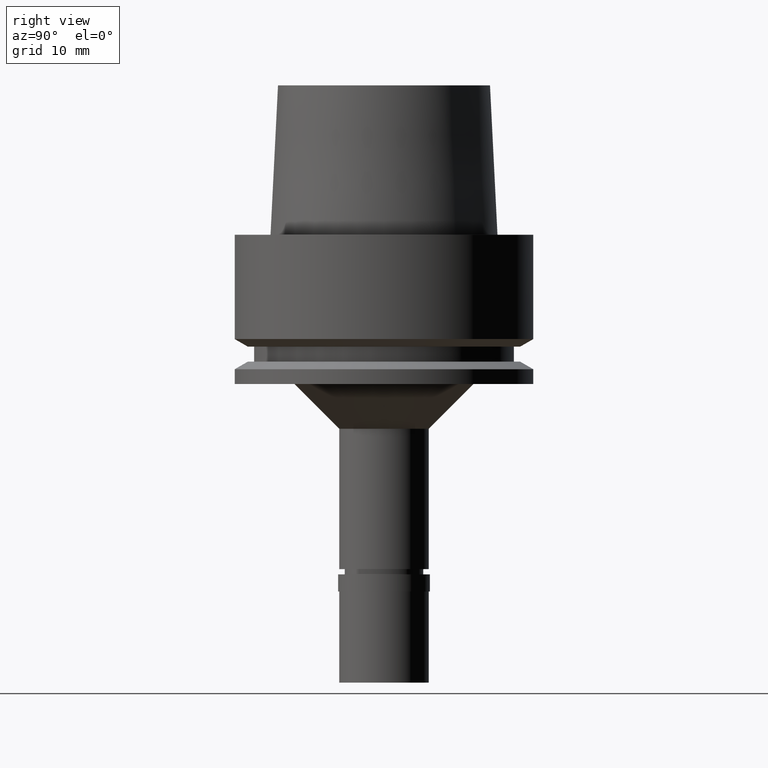
[diagram: clean part render]
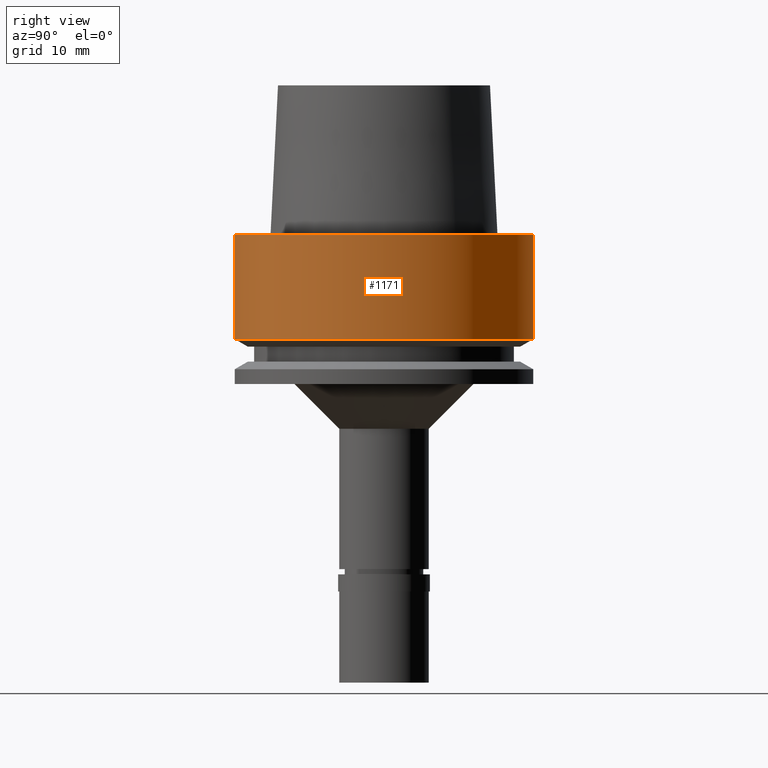
[diagram: same view with one face highlighted and labeled with its STEP entity id]
A machine part, right view. The second image highlights one B-rep face of the part: STEP entity #1171.
In plain terms, the highlighted cylindrical surface (partial cylindrical patch) has radius 20 mm, axis along (0, 0, 1).
Its self-contained STEP definition (entity closure, byte-faithful):
#135 = CIRCLE ( 'NONE', #1961, 20.00000000000000000 ) ;
#290 = DIRECTION ( 'NONE',  ( 0.0000000000000000000, 1.000000000000000000, 0.0000000000000000000 ) ) ;
#388 = CARTESIAN_POINT ( 'NONE',  ( 0.0000000000000000000, 0.0000000000000000000, -59.79999999999999716 ) ) ;
#400 = FACE_OUTER_BOUND ( 'NONE', #1523, .T. ) ;
#428 = ORIENTED_EDGE ( 'NONE', *, *, #2684, .T. ) ;
#658 = DIRECTION ( 'NONE',  ( 0.0000000000000000000, -2.439758400998999725E-14, -1.000000000000000000 ) ) ;
#935 = VERTEX_POINT ( 'NONE', #1214 ) ;
#962 = DIRECTION ( 'NONE',  ( 0.0000000000000000000, 2.439758400998999725E-14, -1.000000000000000000 ) ) ;
#1018 = CYLINDRICAL_SURFACE ( 'NONE', #1548, 20.00000000000000000 ) ;
#1171 = ADVANCED_FACE ( 'NONE', ( #400 ), #1018, .T. ) ;
#1186 = DIRECTION ( 'NONE',  ( 0.0000000000000000000, 0.0000000000000000000, 1.000000000000000000 ) ) ;
#1214 = CARTESIAN_POINT ( 'NONE',  ( 0.0000000000000000000, -20.00000000000000000, 4.973799150320999175E-14 ) ) ;
#1249 = DIRECTION ( 'NONE',  ( 0.0000000000000000000, 1.000000000000000000, 0.0000000000000000000 ) ) ;
#1258 = EDGE_CURVE ( 'NONE', #1925, #1437, #1381, .T. ) ;
#1362 = ORIENTED_EDGE ( 'NONE', *, *, #1867, .T. ) ;
#1373 = CARTESIAN_POINT ( 'NONE',  ( 0.0000000000000000000, 0.0000000000000000000, 4.973799150320999175E-14 ) ) ;
#1381 = LINE ( 'NONE', #2592, #1939 ) ;
#1437 = VERTEX_POINT ( 'NONE', #2665 ) ;
#1444 = DIRECTION ( 'NONE',  ( 0.0000000000000000000, 0.0000000000000000000, 1.000000000000000000 ) ) ;
#1523 = EDGE_LOOP ( 'NONE', ( #428, #1362, #1742, #2237 ) ) ;
#1548 = AXIS2_PLACEMENT_3D ( 'NONE', #388, #1444, #1249 ) ;
#1713 = CARTESIAN_POINT ( 'NONE',  ( 0.0000000000000000000, -20.00000000000000000, 2.842170943039999687E-14 ) ) ;
#1729 = LINE ( 'NONE', #1713, #1968 ) ;
#1742 = ORIENTED_EDGE ( 'NONE', *, *, #2470, .T. ) ;
#1867 = EDGE_CURVE ( 'NONE', #935, #2149, #1729, .T. ) ;
#1892 = CARTESIAN_POINT ( 'NONE',  ( 0.0000000000000000000, 20.00000000000000000, 4.973799150320999175E-14 ) ) ;
#1925 = VERTEX_POINT ( 'NONE', #1892 ) ;
#1939 = VECTOR ( 'NONE', #962, 1000.000000000000000 ) ;
#1961 = AXIS2_PLACEMENT_3D ( 'NONE', #2001, #1186, #2438 ) ;
#1968 = VECTOR ( 'NONE', #658, 1000.000000000000000 ) ;
#2001 = CARTESIAN_POINT ( 'NONE',  ( 0.0000000000000000000, 0.0000000000000000000, -13.97927405538000123 ) ) ;
#2149 = VERTEX_POINT ( 'NONE', #2538 ) ;
#2237 = ORIENTED_EDGE ( 'NONE', *, *, #1258, .F. ) ;
#2261 = AXIS2_PLACEMENT_3D ( 'NONE', #1373, #2356, #290 ) ;
#2356 = DIRECTION ( 'NONE',  ( 0.0000000000000000000, 0.0000000000000000000, -1.000000000000000000 ) ) ;
#2438 = DIRECTION ( 'NONE',  ( 0.0000000000000000000, -1.000000000000000000, 0.0000000000000000000 ) ) ;
#2470 = EDGE_CURVE ( 'NONE', #2149, #1437, #135, .T. ) ;
#2479 = CIRCLE ( 'NONE', #2261, 20.00000000000000000 ) ;
#2538 = CARTESIAN_POINT ( 'NONE',  ( 0.0000000000000000000, -20.00000000000000000, -13.97927405538000123 ) ) ;
#2592 = CARTESIAN_POINT ( 'NONE',  ( 0.0000000000000000000, 20.00000000000000000, 2.842170943039999687E-14 ) ) ;
#2665 = CARTESIAN_POINT ( 'NONE',  ( 0.0000000000000000000, 20.00000000000000000, -13.97927405538000123 ) ) ;
#2684 = EDGE_CURVE ( 'NONE', #1925, #935, #2479, .T. ) ;